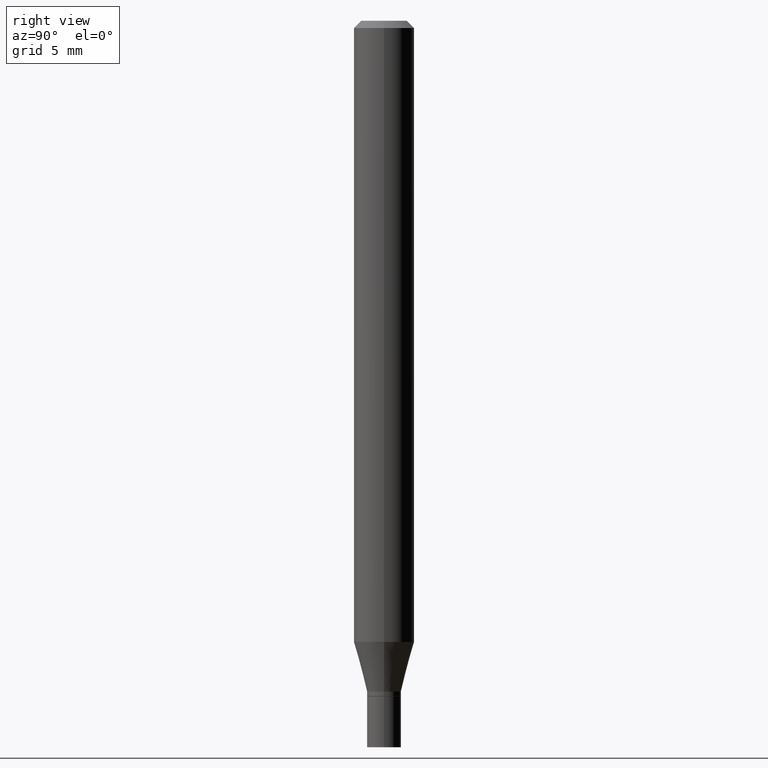
[diagram: clean part render]
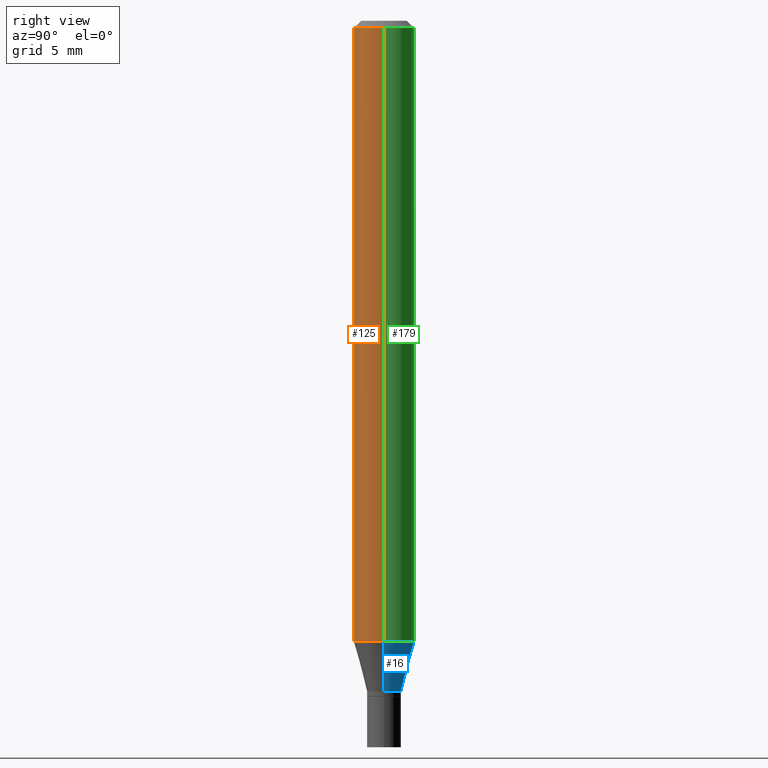
[diagram: same view with three faces highlighted in distinct colors, each labeled with its STEP entity id]
A machine part, right view with three faces highlighted in distinct colors.
Their STEP definitions:

[orange] entity #125 — the highlighted cylindrical surface (edge-blend (fillet) strip) has radius 1.5875 mm, axis along (-0, 0, 1).
#5 = CARTESIAN_POINT ( 'NONE',  ( 0.06250000000000000000, -4.888073874380388472E-16, -0.01499999999999999944 ) ) ;
#30 = CARTESIAN_POINT ( 'NONE',  ( 0.000000000000000000, 0.000000000000000000, 0.000000000000000000 ) ) ;
#41 = ORIENTED_EDGE ( 'NONE', *, *, #232, .T. ) ;
#43 = EDGE_CURVE ( 'NONE', #111, #106, #225, .T. ) ;
#59 = LINE ( 'NONE', #349, #242 ) ;
#64 = DIRECTION ( 'NONE',  ( -2.445468806185136597E-29, 3.491481338843145583E-15, 1.000000000000000000 ) ) ;
#67 = ORIENTED_EDGE ( 'NONE', *, *, #168, .F. ) ;
#92 = DIRECTION ( 'NONE',  ( -2.445468806185136597E-29, 3.491481338843145583E-15, 1.000000000000000000 ) ) ;
#106 = VERTEX_POINT ( 'NONE', #205 ) ;
#110 = FACE_OUTER_BOUND ( 'NONE', #390, .T. ) ;
#111 = VERTEX_POINT ( 'NONE', #427 ) ;
#117 = CARTESIAN_POINT ( 'NONE',  ( -0.06250000000000000000, 4.440892098500626162E-16, -3.074334431409316114E-30 ) ) ;
#125 = ADVANCED_FACE ( 'NONE', ( #110 ), #350, .T. ) ;
#129 = DIRECTION ( 'NONE',  ( -2.445468806185136877E-29, 3.491481338843145188E-15, 1.000000000000000000 ) ) ;
#142 = CARTESIAN_POINT ( 'NONE',  ( 3.668203209277705088E-31, -5.237222008264718399E-17, -0.01499999999999999944 ) ) ;
#168 = EDGE_CURVE ( 'NONE', #355, #290, #297, .T. ) ;
#180 = DIRECTION ( 'NONE',  ( -2.445468806185136597E-29, 3.491481338843145583E-15, 1.000000000000000000 ) ) ;
#203 = DIRECTION ( 'NONE',  ( 1.000000000000000000, -6.982962677686266711E-15, 0.000000000000000000 ) ) ;
#205 = CARTESIAN_POINT ( 'NONE',  ( 0.06250000000000000000, -4.913801213521513807E-15, -1.282368602791855716 ) ) ;
#206 = AXIS2_PLACEMENT_3D ( 'NONE', #409, #92, #229 ) ;
#209 = VECTOR ( 'NONE', #439, 39.37007874015748143 ) ;
#217 = ORIENTED_EDGE ( 'NONE', *, *, #324, .F. ) ;
#218 = CARTESIAN_POINT ( 'NONE',  ( -0.06250000000000000000, -1.820779923274322189E-15, -0.01499999999999999944 ) ) ;
#225 = CIRCLE ( 'NONE', #206, 0.06250000000000000000 ) ;
#229 = DIRECTION ( 'NONE',  ( 1.000000000000000000, -6.982962677686262766E-15, 0.000000000000000000 ) ) ;
#232 = EDGE_CURVE ( 'NONE', #106, #290, #59, .T. ) ;
#239 = DIRECTION ( 'NONE',  ( 1.000000000000000000, -6.982962677686266711E-15, 4.876176775795935793E-29 ) ) ;
#242 = VECTOR ( 'NONE', #129, 39.37007874015748143 ) ;
#290 = VERTEX_POINT ( 'NONE', #5 ) ;
#292 = AXIS2_PLACEMENT_3D ( 'NONE', #30, #180, #239 ) ;
#294 = LINE ( 'NONE', #117, #209 ) ;
#297 = CIRCLE ( 'NONE', #373, 0.06250000000000000000 ) ;
#324 = EDGE_CURVE ( 'NONE', #111, #355, #294, .T. ) ;
#332 = ORIENTED_EDGE ( 'NONE', *, *, #43, .T. ) ;
#349 = CARTESIAN_POINT ( 'NONE',  ( 0.06250000000000000000, -4.364351673553916694E-16, 3.047610484872459871E-30 ) ) ;
#350 = CYLINDRICAL_SURFACE ( 'NONE', #292, 0.06250000000000000000 ) ;
#355 = VERTEX_POINT ( 'NONE', #218 ) ;
#373 = AXIS2_PLACEMENT_3D ( 'NONE', #142, #64, #203 ) ;
#390 = EDGE_LOOP ( 'NONE', ( #217, #332, #41, #67 ) ) ;
#409 = CARTESIAN_POINT ( 'NONE',  ( 3.135992416158700481E-29, -4.477366046166122137E-15, -1.282368602791855716 ) ) ;
#427 = CARTESIAN_POINT ( 'NONE',  ( -0.06250000000000000000, -4.033276836316059521E-15, -1.282368602791855716 ) ) ;
#439 = DIRECTION ( 'NONE',  ( -2.445468806185136877E-29, 3.491481338843145188E-15, 1.000000000000000000 ) ) ;

[blue] entity #16 — the highlighted conical surface has half-angle 15 deg.
#2 = DIRECTION ( 'NONE',  ( 0.2588190451025205729, 1.565188264969627490E-15, 0.9659258262890682012 ) ) ;
#10 = AXIS2_PLACEMENT_3D ( 'NONE', #338, #197, #341 ) ;
#13 = CARTESIAN_POINT ( 'NONE',  ( 3.386974296566414366E-29, -4.835701654297756579E-15, -1.385000000000000009 ) ) ;
#16 = ADVANCED_FACE ( 'NONE', ( #372 ), #31, .T. ) ;
#31 = CONICAL_SURFACE ( 'NONE', #10, 0.03499999999999992700, 0.2617993877991492968 ) ;
#38 = CARTESIAN_POINT ( 'NONE',  ( -0.03499999999999992700, -4.310144266548890801E-15, -1.385000000000000009 ) ) ;
#40 = VERTEX_POINT ( 'NONE', #60 ) ;
#42 = DIRECTION ( 'NONE',  ( -0.2588190451025205729, 5.211531920934544731E-15, 0.9659258262890682012 ) ) ;
#48 = DIRECTION ( 'NONE',  ( -2.445468806185136597E-29, 3.491481338843145583E-15, 1.000000000000000000 ) ) ;
#60 = CARTESIAN_POINT ( 'NONE',  ( 0.03499999999999992700, -5.080105348016775756E-15, -1.385000000000000009 ) ) ;
#66 = LINE ( 'NONE', #352, #91 ) ;
#86 = CIRCLE ( 'NONE', #362, 0.03499999999999992700 ) ;
#91 = VECTOR ( 'NONE', #2, 39.37007874015748854 ) ;
#106 = VERTEX_POINT ( 'NONE', #205 ) ;
#111 = VERTEX_POINT ( 'NONE', #427 ) ;
#149 = DIRECTION ( 'NONE',  ( 1.000000000000000000, -6.982962677686262766E-15, 0.000000000000000000 ) ) ;
#154 = DIRECTION ( 'NONE',  ( -2.445468806185136597E-29, 3.491481338843145583E-15, 1.000000000000000000 ) ) ;
#166 = EDGE_LOOP ( 'NONE', ( #279, #388, #426, #246 ) ) ;
#170 = CIRCLE ( 'NONE', #282, 0.06250000000000000000 ) ;
#194 = EDGE_CURVE ( 'NONE', #106, #111, #170, .T. ) ;
#197 = DIRECTION ( 'NONE',  ( -2.445468806185136597E-29, 3.491481338843145583E-15, 1.000000000000000000 ) ) ;
#205 = CARTESIAN_POINT ( 'NONE',  ( 0.06250000000000000000, -4.913801213521513807E-15, -1.282368602791855716 ) ) ;
#221 = CARTESIAN_POINT ( 'NONE',  ( -0.03499999999999992700, -4.587011696781722870E-15, -1.385000000000000009 ) ) ;
#222 = EDGE_CURVE ( 'NONE', #40, #317, #86, .T. ) ;
#237 = EDGE_CURVE ( 'NONE', #40, #106, #66, .T. ) ;
#246 = ORIENTED_EDGE ( 'NONE', *, *, #237, .F. ) ;
#279 = ORIENTED_EDGE ( 'NONE', *, *, #222, .T. ) ;
#282 = AXIS2_PLACEMENT_3D ( 'NONE', #399, #48, #149 ) ;
#295 = DIRECTION ( 'NONE',  ( 1.000000000000000000, -6.982962677686264344E-15, 0.000000000000000000 ) ) ;
#298 = VECTOR ( 'NONE', #42, 39.37007874015748854 ) ;
#317 = VERTEX_POINT ( 'NONE', #38 ) ;
#338 = CARTESIAN_POINT ( 'NONE',  ( 3.386974296566414366E-29, -4.835701654297756579E-15, -1.385000000000000009 ) ) ;
#341 = DIRECTION ( 'NONE',  ( 1.000000000000000000, -6.982962677686264344E-15, 0.000000000000000000 ) ) ;
#352 = CARTESIAN_POINT ( 'NONE',  ( 0.03499999999999992700, -5.080105348016775756E-15, -1.385000000000000009 ) ) ;
#362 = AXIS2_PLACEMENT_3D ( 'NONE', #13, #154, #295 ) ;
#367 = LINE ( 'NONE', #221, #298 ) ;
#371 = EDGE_CURVE ( 'NONE', #317, #111, #367, .T. ) ;
#372 = FACE_OUTER_BOUND ( 'NONE', #166, .T. ) ;
#388 = ORIENTED_EDGE ( 'NONE', *, *, #371, .T. ) ;
#399 = CARTESIAN_POINT ( 'NONE',  ( 3.135992416158700481E-29, -4.477366046166122137E-15, -1.282368602791855716 ) ) ;
#426 = ORIENTED_EDGE ( 'NONE', *, *, #194, .F. ) ;
#427 = CARTESIAN_POINT ( 'NONE',  ( -0.06250000000000000000, -4.033276836316059521E-15, -1.282368602791855716 ) ) ;

[green] entity #179 — the highlighted cylindrical surface (edge-blend (fillet) strip) has radius 1.5875 mm, axis along (-0, 0, 1).
#5 = CARTESIAN_POINT ( 'NONE',  ( 0.06250000000000000000, -4.888073874380388472E-16, -0.01499999999999999944 ) ) ;
#28 = ORIENTED_EDGE ( 'NONE', *, *, #232, .F. ) ;
#48 = DIRECTION ( 'NONE',  ( -2.445468806185136597E-29, 3.491481338843145583E-15, 1.000000000000000000 ) ) ;
#59 = LINE ( 'NONE', #349, #242 ) ;
#106 = VERTEX_POINT ( 'NONE', #205 ) ;
#111 = VERTEX_POINT ( 'NONE', #427 ) ;
#112 = ORIENTED_EDGE ( 'NONE', *, *, #143, .F. ) ;
#117 = CARTESIAN_POINT ( 'NONE',  ( -0.06250000000000000000, 4.440892098500626162E-16, -3.074334431409316114E-30 ) ) ;
#129 = DIRECTION ( 'NONE',  ( -2.445468806185136877E-29, 3.491481338843145188E-15, 1.000000000000000000 ) ) ;
#131 = CYLINDRICAL_SURFACE ( 'NONE', #385, 0.06250000000000000000 ) ;
#143 = EDGE_CURVE ( 'NONE', #290, #355, #312, .T. ) ;
#149 = DIRECTION ( 'NONE',  ( 1.000000000000000000, -6.982962677686262766E-15, 0.000000000000000000 ) ) ;
#170 = CIRCLE ( 'NONE', #282, 0.06250000000000000000 ) ;
#179 = ADVANCED_FACE ( 'NONE', ( #461 ), #131, .T. ) ;
#182 = AXIS2_PLACEMENT_3D ( 'NONE', #316, #284, #381 ) ;
#194 = EDGE_CURVE ( 'NONE', #106, #111, #170, .T. ) ;
#205 = CARTESIAN_POINT ( 'NONE',  ( 0.06250000000000000000, -4.913801213521513807E-15, -1.282368602791855716 ) ) ;
#209 = VECTOR ( 'NONE', #439, 39.37007874015748143 ) ;
#218 = CARTESIAN_POINT ( 'NONE',  ( -0.06250000000000000000, -1.820779923274322189E-15, -0.01499999999999999944 ) ) ;
#232 = EDGE_CURVE ( 'NONE', #106, #290, #59, .T. ) ;
#242 = VECTOR ( 'NONE', #129, 39.37007874015748143 ) ;
#282 = AXIS2_PLACEMENT_3D ( 'NONE', #399, #48, #149 ) ;
#284 = DIRECTION ( 'NONE',  ( -2.445468806185136597E-29, 3.491481338843145583E-15, 1.000000000000000000 ) ) ;
#290 = VERTEX_POINT ( 'NONE', #5 ) ;
#293 = ORIENTED_EDGE ( 'NONE', *, *, #324, .T. ) ;
#294 = LINE ( 'NONE', #117, #209 ) ;
#312 = CIRCLE ( 'NONE', #182, 0.06250000000000000000 ) ;
#316 = CARTESIAN_POINT ( 'NONE',  ( 3.668203209277705088E-31, -5.237222008264718399E-17, -0.01499999999999999944 ) ) ;
#324 = EDGE_CURVE ( 'NONE', #111, #355, #294, .T. ) ;
#329 = DIRECTION ( 'NONE',  ( -2.445468806185136597E-29, 3.491481338843145583E-15, 1.000000000000000000 ) ) ;
#333 = EDGE_LOOP ( 'NONE', ( #358, #293, #112, #28 ) ) ;
#349 = CARTESIAN_POINT ( 'NONE',  ( 0.06250000000000000000, -4.364351673553916694E-16, 3.047610484872459871E-30 ) ) ;
#355 = VERTEX_POINT ( 'NONE', #218 ) ;
#358 = ORIENTED_EDGE ( 'NONE', *, *, #194, .T. ) ;
#368 = DIRECTION ( 'NONE',  ( 1.000000000000000000, -6.982962677686266711E-15, 4.876176775795935793E-29 ) ) ;
#381 = DIRECTION ( 'NONE',  ( 1.000000000000000000, -6.982962677686266711E-15, 0.000000000000000000 ) ) ;
#382 = CARTESIAN_POINT ( 'NONE',  ( 0.000000000000000000, 0.000000000000000000, 0.000000000000000000 ) ) ;
#385 = AXIS2_PLACEMENT_3D ( 'NONE', #382, #329, #368 ) ;
#399 = CARTESIAN_POINT ( 'NONE',  ( 3.135992416158700481E-29, -4.477366046166122137E-15, -1.282368602791855716 ) ) ;
#427 = CARTESIAN_POINT ( 'NONE',  ( -0.06250000000000000000, -4.033276836316059521E-15, -1.282368602791855716 ) ) ;
#439 = DIRECTION ( 'NONE',  ( -2.445468806185136877E-29, 3.491481338843145188E-15, 1.000000000000000000 ) ) ;
#461 = FACE_OUTER_BOUND ( 'NONE', #333, .T. ) ;